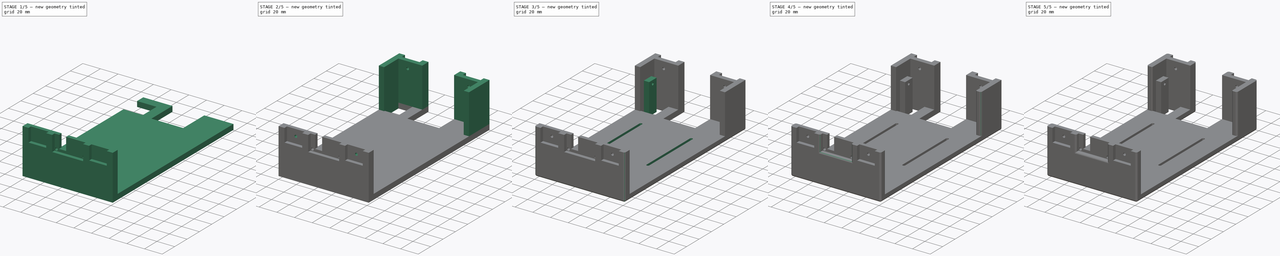
[diagram: build sequence overview — one tinted view per stage of 5, left to right]
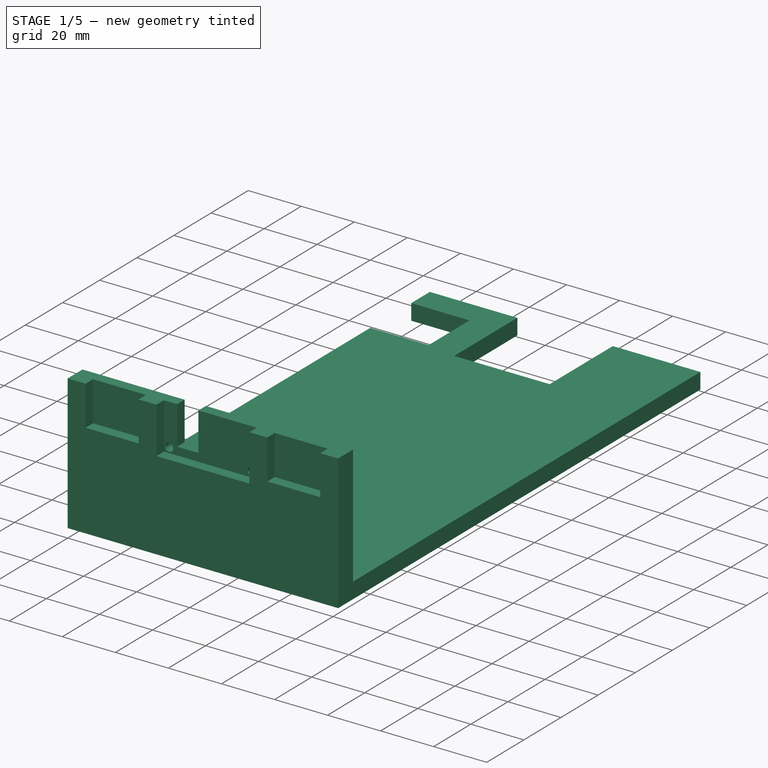
[diagram: stage 1 of 5 — iso view after this stage's code; geometry added in this stage tinted green]
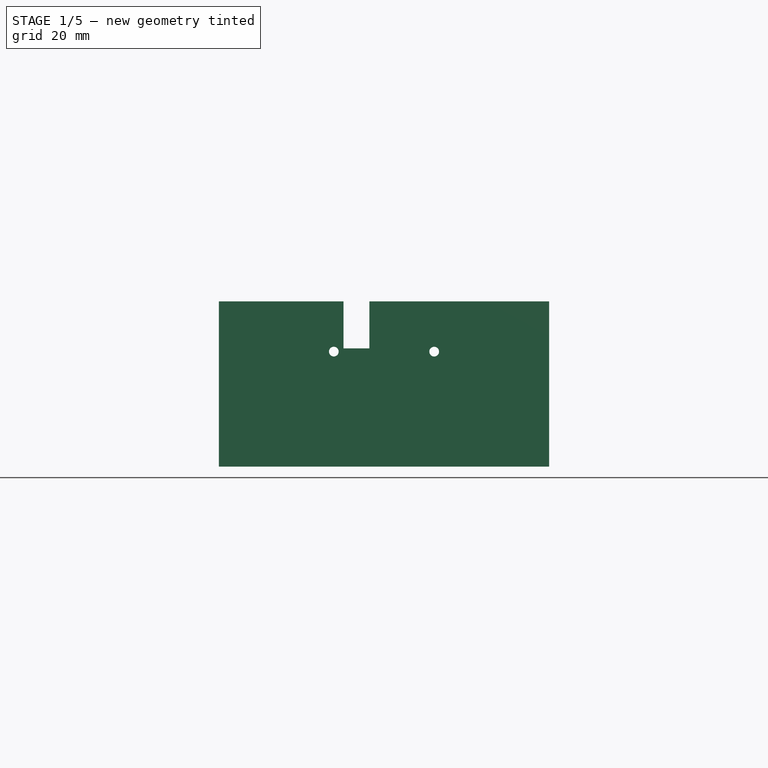
[diagram: stage 1 of 5 — front view after this stage's code; geometry added in this stage tinted green]
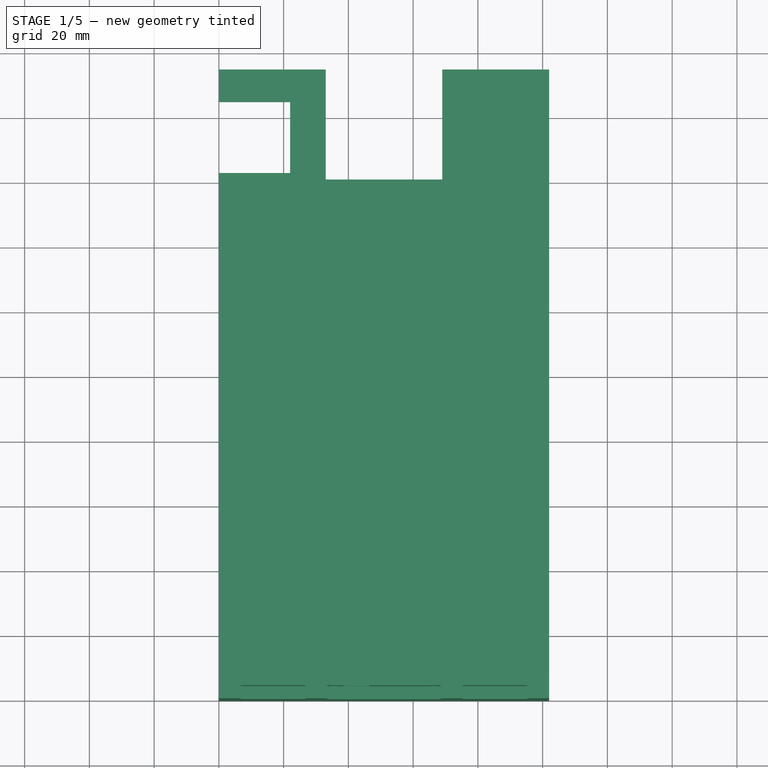
[diagram: stage 1 of 5 — top view after this stage's code; geometry added in this stage tinted green]
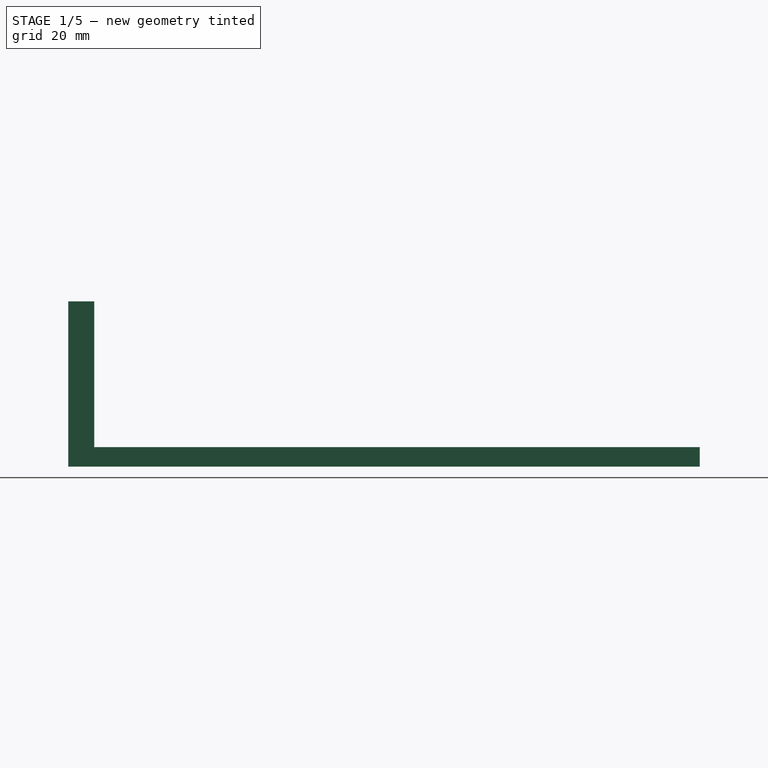
[diagram: stage 1 of 5 — right view after this stage's code; geometry added in this stage tinted green]
FCSTD DOCUMENT  (FreeCAD 0.20R29603 (Git))
Label: PipeScan Bottom
License: All rights reserved
LicenseURL: http://en.wikipedia.org/wiki/All_rights_reserved
objects: Sketcher::SketchObject×14, PartDesign::Fillet×14, PartDesign::Pocket×9, PartDesign::Pad×5, PartDesign::Body×1
note: 71 computed .brp shape members not serialized (recipe doc carries the construction recipe); baked Part::Feature solids carry a one-line shape summary decoded from their .brp

FEATURE [Sketcher::SketchObject] Sketch
  FullyConstrained = true
  MapMode = 5
  Support = -> [XY_Plane]
  sketch-geometry (8):
    g0: LineSegment StartX=0 StartY=0 StartZ=0 EndX=0 EndY=195 EndZ=0
    g1: LineSegment StartX=0 StartY=195 StartZ=0 EndX=33 EndY=195 EndZ=0
    g2: LineSegment StartX=33 StartY=195 StartZ=0 EndX=33 EndY=161 EndZ=0
    g3: LineSegment StartX=33 StartY=161 StartZ=0 EndX=69 EndY=161 EndZ=0
    g4: LineSegment StartX=69 StartY=161 StartZ=0 EndX=69 EndY=195 EndZ=0
    g5: LineSegment StartX=69 StartY=195 StartZ=0 EndX=102 EndY=195 EndZ=0
    g6: LineSegment StartX=102 StartY=195 StartZ=0 EndX=102 EndY=0 EndZ=0
    g7: LineSegment StartX=102 StartY=0 StartZ=0 EndX=0 EndY=0 EndZ=0
  constraints (23):
    c: Vertical(g0)
    c: Coincident(g0,g1)
    c: Coincident(g1,g2)
    c: Vertical(g2)
    c: Coincident(g2,g3)
    c: Horizontal(g3)
    c: Coincident(g3,g4)
    c: Vertical(g4)
    c: Coincident(g4,g5)
    c: Horizontal(g5)
    c: Coincident(g5,g6)
    c: Vertical(g6)
    c: Coincident(g6,g7)
    c: Coincident(g7,g0)
    c: Horizontal(g7)
    c: Equal(g6,g0)
    c: Horizontal(g1)
    c: DistanceY(g6,g6) = 195
    c: DistanceX(g7,g7) = 102
    c: Equal(g5,g1)
    c: DistanceX(g1,g1) = 33
    c: DistanceY(g4,g4) = 34
    c: Coincident(g-1,g0)
FEATURE [PartDesign::Pad] Pad  label="Estrutura"
  Direction = (0,0,1)
  Length = 6
  Length2 = 10
  Profile = -> Sketch
  ReferenceAxis = -> Sketch [N_Axis]
  Type = 0
FEATURE [Sketcher::SketchObject] Sketch001
  ExternalGeometry = -> [Pad]
  FullyConstrained = true
  MapMode = 5
  Placement = pos=(0,0,6) rot=(0,0,1;0rad)
  Support = -> [Pad]
  sketch-geometry (4):
    g0: LineSegment StartX=0 StartY=185 StartZ=0 EndX=22 EndY=185 EndZ=0
    g1: LineSegment StartX=22 StartY=185 StartZ=0 EndX=22 EndY=163 EndZ=0
    g2: LineSegment StartX=22 StartY=163 StartZ=0 EndX=0 EndY=163 EndZ=0
    g3: LineSegment StartX=0 StartY=163 StartZ=0 EndX=0 EndY=185 EndZ=0
  constraints (12):
    c: Coincident(g0,g1)
    c: Coincident(g1,g2)
    c: Coincident(g2,g3)
    c: Coincident(g3,g0)
    c: Horizontal(g0)
    c: Horizontal(g2)
    c: Vertical(g1)
    c: Vertical(g3)
    c: DistanceX(g2,g2) = 22
    c: Equal(g2,g1)
    c: PointOnObject(g0,g-2)
    c: DistanceY(g0,g-3) = 10
FEATURE [PartDesign::Pocket] Pocket  label="Furo Encaixe"
  BaseFeature = -> Pad
  Direction = (0,0,-1)
  Length = 6
  Length2 = 5
  Profile = -> Sketch001
  ReferenceAxis = -> Sketch001 [N_Axis]
  Type = 0
FEATURE [Sketcher::SketchObject] Sketch002
  FullyConstrained = true
  MapMode = 5
  Placement = pos=(0,0,6) rot=(0,0,1;0rad)
  Support = -> [Pocket]
  sketch-geometry (4):
    g0: LineSegment StartX=0 StartY=8 StartZ=0 EndX=102 EndY=8 EndZ=0
    g1: LineSegment StartX=102 StartY=8 StartZ=0 EndX=102 EndY=0 EndZ=0
    g2: LineSegment StartX=102 StartY=0 StartZ=0 EndX=0 EndY=0 EndZ=0
    g3: LineSegment StartX=0 StartY=0 StartZ=0 EndX=0 EndY=8 EndZ=0
  constraints (11):
    c: Coincident(g0,g1)
    c: Coincident(g1,g2)
    c: Coincident(g2,g3)
    c: Coincident(g3,g0)
    c: Horizontal(g0)
    c: Horizontal(g2)
    c: Vertical(g1)
    c: Vertical(g3)
    c: DistanceY(g1,g1) = 8
    c: DistanceX(g2,g2) = 102
    c: Coincident(g2,g-1)
FEATURE [PartDesign::Pad] Pad001  label="Frente"
  BaseFeature = -> Pocket
  Direction = (0,0,1)
  Length = 45
  Length2 = 10
  Profile = -> Sketch002
  ReferenceAxis = -> Sketch002 [N_Axis]
  Type = 0
FEATURE [Sketcher::SketchObject] Sketch003
  ExternalGeometry = -> [Pad001]
  FullyConstrained = true
  MapMode = 5
  Placement = pos=(0,0,0) rot=(1,0,0;1.5708rad)
  Support = -> [Pad001]
  sketch-geometry (4):
    g0: LineSegment StartX=33.5 StartY=51 StartZ=0 EndX=68.5 EndY=51 EndZ=0
    g1: LineSegment StartX=68.5 StartY=51 StartZ=0 EndX=68.5 EndY=33.5 EndZ=0
    g2: LineSegment StartX=68.5 StartY=33.5 StartZ=0 EndX=33.5 EndY=33.5 EndZ=0
    g3: LineSegment StartX=33.5 StartY=33.5 StartZ=0 EndX=33.5 EndY=51 EndZ=0
  constraints (12):
    c: Coincident(g0,g1)
    c: Coincident(g1,g2)
    c: Coincident(g2,g3)
    c: Coincident(g3,g0)
    c: Horizontal(g0)
    c: Horizontal(g2)
    c: Vertical(g1)
    c: Vertical(g3)
    c: DistanceX(g2,g2) = 35
    c: DistanceY(g1,g1) = 17.5
    c: PointOnObject(g0,g-3)
    c: DistanceX(g-3,g0) = 33.5
FEATURE [PartDesign::Pocket] Pocket001  label="Câmera"
  BaseFeature = -> Pad001
  Direction = (0,1,-2e-16)
  Length = 4
  Length2 = 5
  Profile = -> Sketch003
  ReferenceAxis = -> Sketch003 [N_Axis]
  Type = 0
FEATURE [Sketcher::SketchObject] Sketch004
  ExternalGeometry = -> [Pocket001]
  FullyConstrained = true
  MapMode = 5
  Placement = pos=(0,4,-9e-16) rot=(1,0,0;1.5708rad)
  Support = -> [Pocket001]
  sketch-geometry (6):
    g0: LineSegment StartX=38.5 StartY=51 StartZ=0 EndX=46.5 EndY=51 EndZ=0
    g1: LineSegment StartX=46.5 StartY=51 StartZ=0 EndX=46.5 EndY=36.5 EndZ=0
    g2: LineSegment StartX=46.5 StartY=36.5 StartZ=0 EndX=38.5 EndY=36.5 EndZ=0
    g3: LineSegment StartX=38.5 StartY=36.5 StartZ=0 EndX=38.5 EndY=51 EndZ=0
    g4: Circle CenterX=35.5 CenterY=35.5 CenterZ=0 NormalX=0 NormalY=0 NormalZ=1 AngleXU=0 Radius=1.5
    g5: Circle CenterX=66.5 CenterY=35.5 CenterZ=0 NormalX=0 NormalY=0 NormalZ=1 AngleXU=0 Radius=1.5
  constraints (18):
    c: Coincident(g0,g1)
    c: Coincident(g1,g2)
    c: Coincident(g2,g3)
    c: Coincident(g3,g0)
    c: Horizontal(g0)
    c: Horizontal(g2)
    c: Vertical(g1)
    c: Vertical(g3)
    c: DistanceX(g0,g0) = 8
    c: DistanceX(g-3,g2) = 5
    c: DistanceY(g-3,g2) = 3
    c: PointOnObject(g0,g-4)
    c: Equal(g5,g4)
    c: Radius(g4) = 1.5
    c: DistanceX(g-3,g4) = 2
    c: DistanceY(g-3,g4) = 2
    c: DistanceX(g5,g-3) = 2
    c: DistanceY(g-3,g5) = 2
FEATURE [PartDesign::Pocket] Pocket002  label="Furos Câmera"
  BaseFeature = -> Pocket001
  Direction = (0,1,-2e-16)
  Length = 4
  Length2 = 5
  Profile = -> Sketch004
  ReferenceAxis = -> Sketch004 [N_Axis]
  Type = 0
FEATURE [Sketcher::SketchObject] Sketch005
  ExternalGeometry = -> [Pocket002]
  FullyConstrained = true
  MapMode = 5
  Placement = pos=(0,0,51) rot=(0,0,1;0rad)
  Support = -> [Pocket002]
  sketch-geometry (8):
    g0: LineSegment StartX=75.25 StartY=4 StartZ=0 EndX=95.25 EndY=4 EndZ=0
    g1: LineSegment StartX=95.25 StartY=4 StartZ=0 EndX=95.25 EndY=0 EndZ=0
    g2: LineSegment StartX=95.25 StartY=0 StartZ=0 EndX=75.25 EndY=0 EndZ=0
    g3: LineSegment StartX=75.25 StartY=0 StartZ=0 EndX=75.25 EndY=4 EndZ=0
    g4: LineSegment StartX=6.75 StartY=4 StartZ=0 EndX=26.75 EndY=4 EndZ=0
    g5: LineSegment StartX=26.75 StartY=4 StartZ=0 EndX=26.75 EndY=0 EndZ=0
    g6: LineSegment StartX=26.75 StartY=0 StartZ=0 EndX=6.75 EndY=0 EndZ=0
    g7: LineSegment StartX=6.75 StartY=0 StartZ=0 EndX=6.75 EndY=4 EndZ=0
  constraints (24):
    c: Coincident(g0,g1)
    c: Coincident(g1,g2)
    c: Coincident(g2,g3)
    c: Coincident(g3,g0)
    c: Horizontal(g0)
    c: Horizontal(g2)
    c: Vertical(g1)
    c: Vertical(g3)
    c: DistanceY(g1,g1) = 4
    c: DistanceX(g0,g0) = 20
    c: PointOnObject(g2,g-1)
    c: DistanceX(g-3,g2) = 6.75
    c: Coincident(g4,g5)
    c: Coincident(g5,g6)
    c: Coincident(g6,g7)
    c: Coincident(g7,g4)
    c: Horizontal(g4)
    c: Horizontal(g6)
    c: Vertical(g5)
    c: Vertical(g7)
    c: Equal(g5,g1)
    c: Equal(g0,g4)
    c: PointOnObject(g6,g-1)
    c: DistanceX(g-1,g6) = 6.75
FEATURE [PartDesign::Pocket] Pocket003  label="Encaixes Frontal"
  BaseFeature = -> Pocket002
  Direction = (0,0,-1)
  Length = 15
  Length2 = 5
  Profile = -> Sketch005
  ReferenceAxis = -> Sketch005 [N_Axis]
  Type = 0
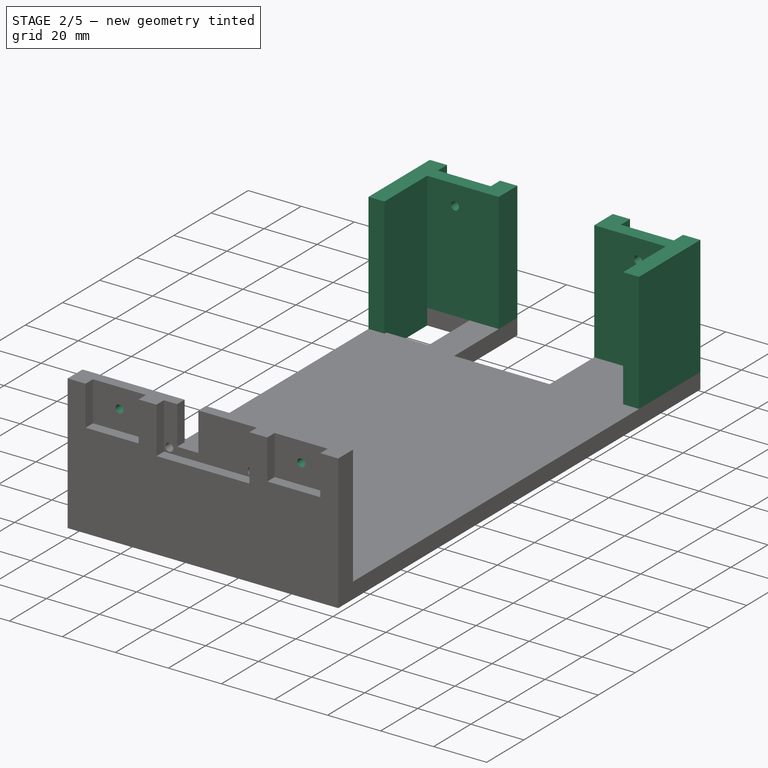
[diagram: stage 2 of 5 — iso view after this stage's code; geometry added in this stage tinted green]
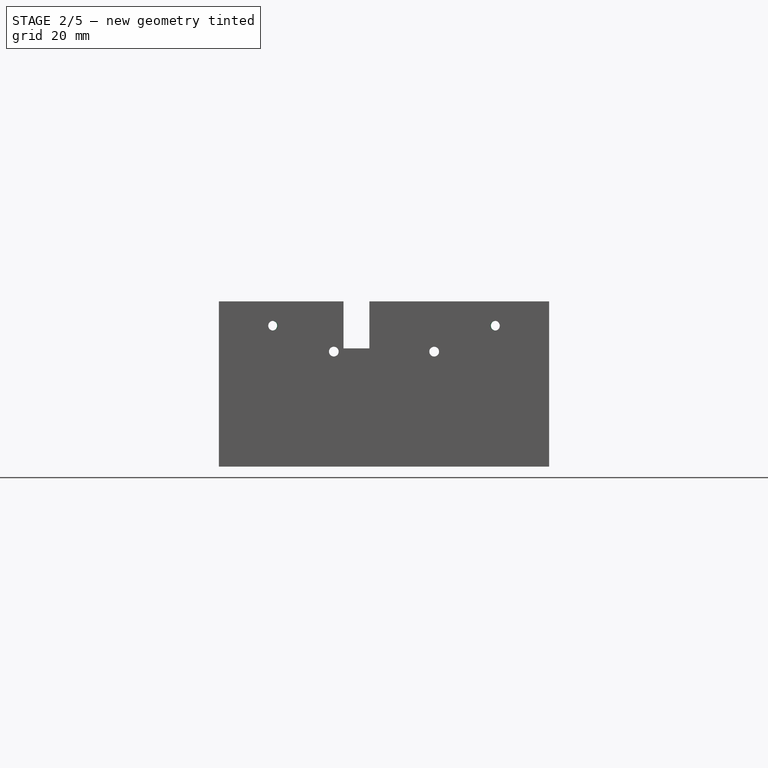
[diagram: stage 2 of 5 — front view after this stage's code; geometry added in this stage tinted green]
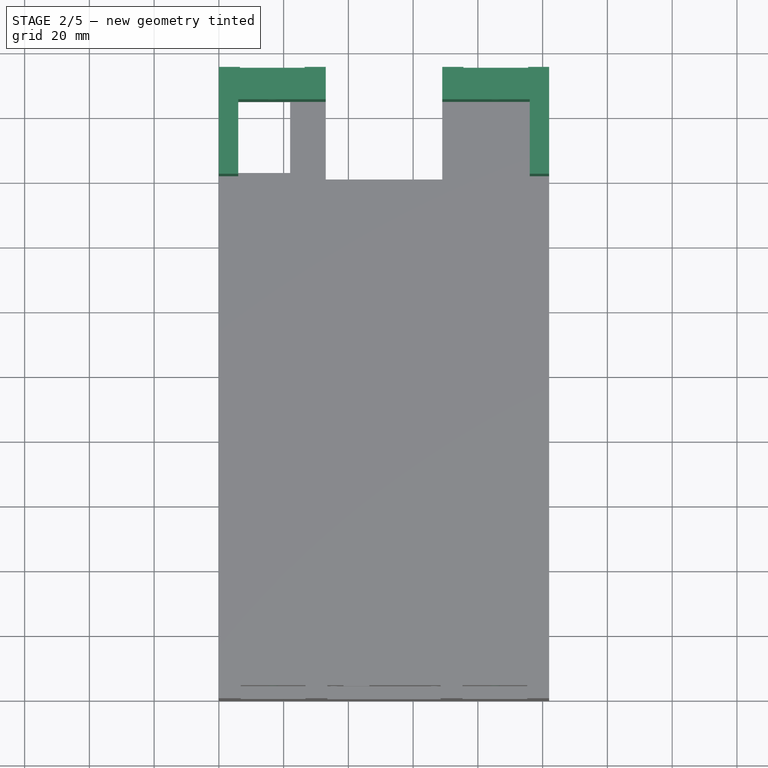
[diagram: stage 2 of 5 — top view after this stage's code; geometry added in this stage tinted green]
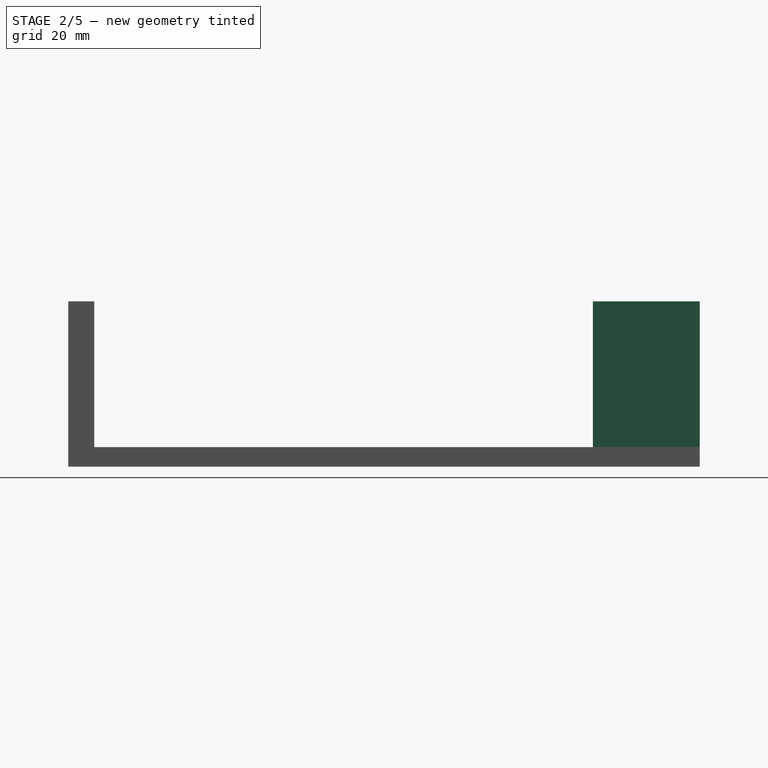
[diagram: stage 2 of 5 — right view after this stage's code; geometry added in this stage tinted green]
FEATURE [Sketcher::SketchObject] Sketch006
  ExternalGeometry = -> [Pocket003]
  FullyConstrained = true
  MapMode = 5
  Placement = pos=(0,4,0) rot=(1,0,0;1.5708rad)
  Support = -> [Pocket003]
  sketch-geometry (2):
    g0: Circle CenterX=16.75 CenterY=43.5 CenterZ=0 NormalX=0 NormalY=0 NormalZ=1 AngleXU=0 Radius=1.5
    g1: Circle CenterX=85.25 CenterY=43.5 CenterZ=0 NormalX=0 NormalY=0 NormalZ=1 AngleXU=0 Radius=1.5
  constraints (6):
    c: Equal(g0,g1)
    c: Radius(g0) = 1.5
    c: DistanceX(g-3,g0) = 10
    c: DistanceY(g0,g-3) = 7.5
    c: DistanceX(g-4,g1) = 10
    c: DistanceY(g1,g-4) = 7.5
FEATURE [PartDesign::Pocket] Pocket004  label="Parafusos Encaixe Frontal"
  BaseFeature = -> Pocket003
  Direction = (0,1,-2e-16)
  Length = 4
  Length2 = 5
  Profile = -> Sketch006
  ReferenceAxis = -> Sketch006 [N_Axis]
  Type = 0
FEATURE [Sketcher::SketchObject] Sketch007
  ExternalGeometry = -> [Pocket004]
  FullyConstrained = true
  MapMode = 5
  Placement = pos=(0,0,6) rot=(0,0,1;0rad)
  Support = -> [Pocket004]
  sketch-geometry (12):
    g0: LineSegment StartX=102 StartY=162 StartZ=0 EndX=96 EndY=162 EndZ=0
    g1: LineSegment StartX=96 StartY=162 StartZ=0 EndX=96 EndY=185 EndZ=0
    g2: LineSegment StartX=96 StartY=185 StartZ=0 EndX=69 EndY=185 EndZ=0
    g3: LineSegment StartX=69 StartY=185 StartZ=0 EndX=69 EndY=195 EndZ=0
    g4: LineSegment StartX=69 StartY=195 StartZ=0 EndX=102 EndY=195 EndZ=0
    g5: LineSegment StartX=102 StartY=195 StartZ=0 EndX=102 EndY=162 EndZ=0
    g6: LineSegment StartX=6 StartY=162 StartZ=0 EndX=0 EndY=162 EndZ=0
    g7: LineSegment StartX=0 StartY=162 StartZ=0 EndX=0 EndY=195 EndZ=0
    g8: LineSegment StartX=0 StartY=195 StartZ=0 EndX=33 EndY=195 EndZ=0
    g9: LineSegment StartX=33 StartY=195 StartZ=0 EndX=33 EndY=185 EndZ=0
    g10: LineSegment StartX=33 StartY=185 StartZ=0 EndX=6 EndY=185 EndZ=0
    g11: LineSegment StartX=6 StartY=185 StartZ=0 EndX=6 EndY=162 EndZ=0
  constraints (32):
    c: Horizontal(g0)
    c: Coincident(g0,g1)
    c: Vertical(g1)
    c: Coincident(g1,g2)
    c: Horizontal(g2)
    c: Coincident(g2,g3)
    c: Vertical(g3)
    c: Coincident(g3,g4)
    c: Coincident(g4,g5)
    c: Coincident(g5,g0)
    c: Vertical(g5)
    c: Horizontal(g6)
    c: Coincident(g6,g7)
    c: Vertical(g7)
    c: Coincident(g7,g8)
    c: Coincident(g8,g9)
    c: Vertical(g9)
    c: Coincident(g9,g10)
    c: Horizontal(g10)
    c: Coincident(g10,g11)
    c: Coincident(g11,g6)
    c: Vertical(g11)
    c: DistanceX(g6,g6) = 6
    c: Coincident(g7,g-3)
    c: Coincident(g8,g-3)
    c: PointOnObject(g10,g-4)
    c: DistanceY(g7,g7) = 33
    c: Coincident(g4,g-5)
    c: Coincident(g3,g-5)
    c: Equal(g3,g9)
    c: Equal(g7,g5)
    c: Equal(g0,g6)
FEATURE [PartDesign::Pad] Pad002  label="Atrás"
  BaseFeature = -> Pocket004
  Direction = (0,0,1)
  Length = 45
  Length2 = 10
  Profile = -> Sketch007
  ReferenceAxis = -> Sketch007 [N_Axis]
  Type = 0
FEATURE [Sketcher::SketchObject] Sketch008
  ExternalGeometry = -> [Pad002]
  FullyConstrained = true
  MapMode = 5
  Placement = pos=(0,185,0) rot=(1,0,0;1.5708rad)
  Support = -> [Pad002]
  sketch-geometry (4):
    g0: LineSegment StartX=6 StartY=0 StartZ=0 EndX=0 EndY=0 EndZ=0
    g1: LineSegment StartX=0 StartY=0 StartZ=0 EndX=0 EndY=6 EndZ=0
    g2: LineSegment StartX=0 StartY=6 StartZ=0 EndX=6 EndY=6 EndZ=0
    g3: LineSegment StartX=6 StartY=6 StartZ=0 EndX=6 EndY=0 EndZ=0
  constraints (9):
    c: Coincident(g0,g1)
    c: Coincident(g1,g2)
    c: Coincident(g2,g3)
    c: Coincident(g3,g0)
    c: Horizontal(g0)
    c: Vertical(g3)
    c: Coincident(g0,g-1)
    c: Coincident(g-3,g1)
    c: Coincident(g-3,g2)
FEATURE [PartDesign::Pad] Pad003  label="Detalhe"
  BaseFeature = -> Pad002
  Direction = (0,-1,2e-16)
  Length = 22
  Length2 = 10
  Profile = -> Sketch008
  ReferenceAxis = -> Sketch008 [N_Axis]
  Type = 0
FEATURE [Sketcher::SketchObject] Sketch009
  ExternalGeometry = -> [Pad003]
  FullyConstrained = true
  MapMode = 5
  Placement = pos=(0,0,51) rot=(0,0,1;0rad)
  Support = -> [Pad003]
  sketch-geometry (8):
    g0: LineSegment StartX=6.5 StartY=195 StartZ=0 EndX=26.5 EndY=195 EndZ=0
    g1: LineSegment StartX=26.5 StartY=195 StartZ=0 EndX=26.5 EndY=190 EndZ=0
    g2: LineSegment StartX=26.5 StartY=190 StartZ=0 EndX=6.5 EndY=190 EndZ=0
    g3: LineSegment StartX=6.5 StartY=190 StartZ=0 EndX=6.5 EndY=195 EndZ=0
    g4: LineSegment StartX=75.5 StartY=195 StartZ=0 EndX=95.5 EndY=195 EndZ=0
    g5: LineSegment StartX=95.5 StartY=195 StartZ=0 EndX=95.5 EndY=190 EndZ=0
    g6: LineSegment StartX=95.5 StartY=190 StartZ=0 EndX=75.5 EndY=190 EndZ=0
    g7: LineSegment StartX=75.5 StartY=190 StartZ=0 EndX=75.5 EndY=195 EndZ=0
  constraints (24):
    c: Coincident(g0,g1)
    c: Coincident(g1,g2)
    c: Coincident(g2,g3)
    c: Coincident(g3,g0)
    c: Horizontal(g0)
    c: Horizontal(g2)
    c: Vertical(g1)
    c: Vertical(g3)
    c: Coincident(g4,g5)
    c: Coincident(g5,g6)
    c: Coincident(g6,g7)
    c: Coincident(g7,g4)
    c: Horizontal(g4)
    c: Horizontal(g6)
    c: Vertical(g5)
    c: Vertical(g7)
    c: DistanceY(g1,g1) = 5
    c: DistanceX(g2,g2) = 20
    c: PointOnObject(g0,g-3)
    c: DistanceX(g-3,g0) = 6.5
    c: Equal(g7,g1)
    c: Equal(g2,g6)
    c: PointOnObject(g4,g-4)
    c: DistanceX(g-4,g4) = 6.5
FEATURE [PartDesign::Pocket] Pocket005  label="Encaixes Traseiro"
  BaseFeature = -> Pad003
  Direction = (0,0,-1)
  Length = 15
  Length2 = 5
  Profile = -> Sketch009
  ReferenceAxis = -> Sketch009 [N_Axis]
  Type = 0
FEATURE [Sketcher::SketchObject] Sketch010
  ExternalGeometry = -> [Pocket005]
  FullyConstrained = true
  MapMode = 5
  Placement = pos=(0,190,0) rot=(0,0.707107,0.707107;3.14159rad)
  Support = -> [Pocket005]
  sketch-geometry (2):
    g0: Circle CenterX=-85.5 CenterY=43.5 CenterZ=0 NormalX=0 NormalY=0 NormalZ=1 AngleXU=0 Radius=1.5
    g1: Circle CenterX=-16.5 CenterY=43.5 CenterZ=0 NormalX=0 NormalY=0 NormalZ=1 AngleXU=0 Radius=1.5
  constraints (6):
    c: Equal(g1,g0)
    c: Radius(g0) = 1.5
    c: DistanceX(g-3,g0) = 10
    c: DistanceY(g0,g-3) = 7.5
    c: DistanceX(g-4,g1) = 10
    c: DistanceY(g1,g-4) = 7.5
FEATURE [PartDesign::Pocket] Pocket006  label="Parafuso Traseiro"
  BaseFeature = -> Pocket005
  Direction = (0,-1,2e-16)
  Length = 5
  Length2 = 5
  Profile = -> Sketch010
  ReferenceAxis = -> Sketch010 [N_Axis]
  Type = 0
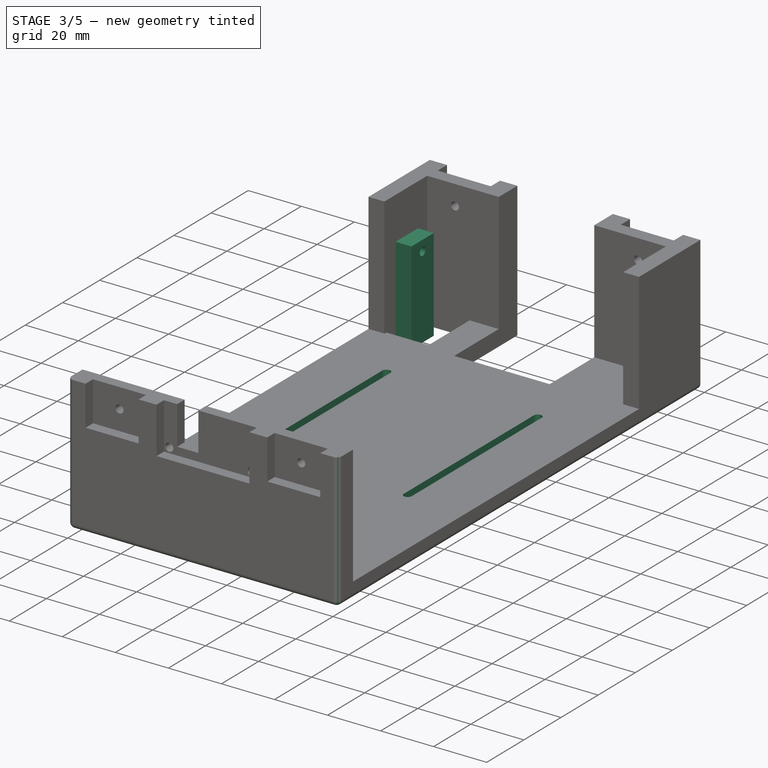
[diagram: stage 3 of 5 — iso view after this stage's code; geometry added in this stage tinted green]
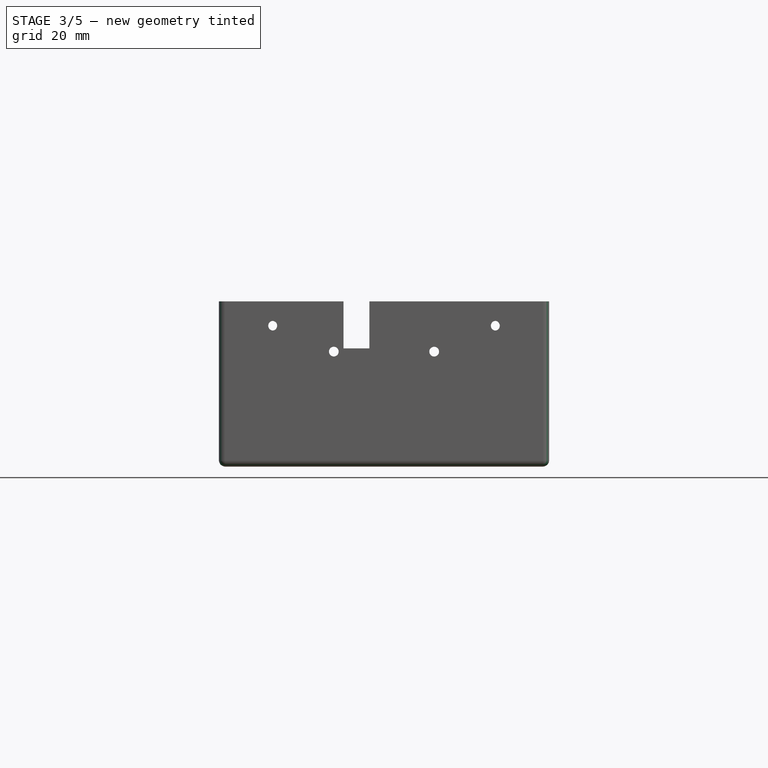
[diagram: stage 3 of 5 — front view after this stage's code; geometry added in this stage tinted green]
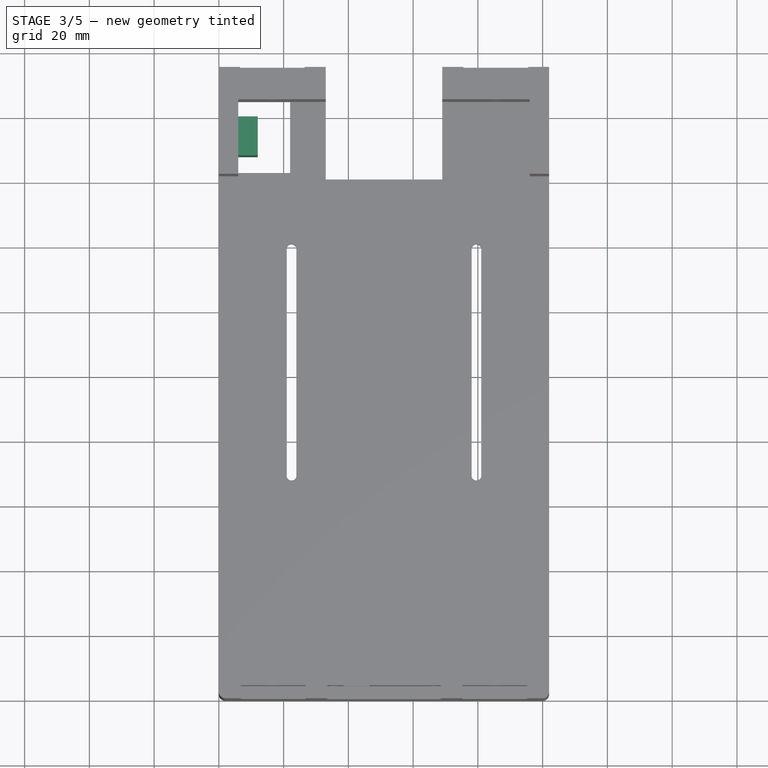
[diagram: stage 3 of 5 — top view after this stage's code; geometry added in this stage tinted green]
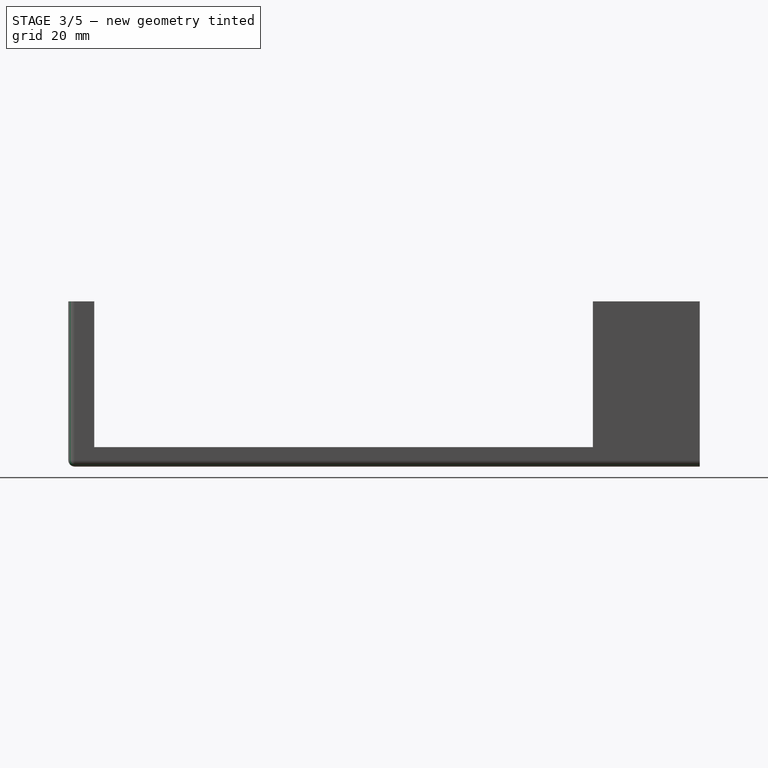
[diagram: stage 3 of 5 — right view after this stage's code; geometry added in this stage tinted green]
FEATURE [Sketcher::SketchObject] Sketch011
  ExternalGeometry = -> [Pocket006]
  FullyConstrained = true
  MapMode = 5
  Placement = pos=(6,0,0) rot=(0.57735,0.57735,0.57735;2.0944rad)
  Support = -> [Pocket006]
  sketch-geometry (4):
    g0: LineSegment StartX=168 StartY=35 StartZ=0 EndX=180 EndY=35 EndZ=0
    g1: LineSegment StartX=180 StartY=35 StartZ=0 EndX=180 EndY=0 EndZ=0
    g2: LineSegment StartX=180 StartY=0 StartZ=0 EndX=168 EndY=0 EndZ=0
    g3: LineSegment StartX=168 StartY=0 StartZ=0 EndX=168 EndY=35 EndZ=0
  constraints (12):
    c: Coincident(g0,g1)
    c: Coincident(g1,g2)
    c: Coincident(g2,g3)
    c: Coincident(g3,g0)
    c: Horizontal(g0)
    c: Horizontal(g2)
    c: Vertical(g1)
    c: Vertical(g3)
    c: DistanceY(g1,g1) = 35
    c: DistanceX(g0,g0) = 12
    c: PointOnObject(g1,g-1)
    c: DistanceX(g-3,g2) = 5
FEATURE [PartDesign::Pad] Pad004  label="Apoio Base Roda"
  BaseFeature = -> Pocket006
  Direction = (1,0,0)
  Length = 6
  Length2 = 10
  Profile = -> Sketch011
  ReferenceAxis = -> Sketch011 [N_Axis]
  Type = 0
FEATURE [Sketcher::SketchObject] Sketch012
  ExternalGeometry = -> [Pad004]
  FullyConstrained = true
  MapMode = 5
  Placement = pos=(12,0,0) rot=(0.57735,0.57735,0.57735;2.0944rad)
  Support = -> [Pad004]
  sketch-geometry (1):
    g0: Circle CenterX=174 CenterY=31 CenterZ=0 NormalX=0 NormalY=0 NormalZ=1 AngleXU=0 Radius=1.5
  constraints (3):
    c: Radius(g0) = 1.5
    c: DistanceY(g-3,g0) = 31
    c: DistanceX(g0,g-3) = 6
FEATURE [PartDesign::Pocket] Pocket007  label="Parafuso Base Vertical"
  BaseFeature = -> Pad004
  Direction = (-1,0,0)
  Length = 5
  Length2 = 5
  Profile = -> Sketch012
  ReferenceAxis = -> Sketch012 [N_Axis]
  Type = 1
FEATURE [Sketcher::SketchObject] Sketch013
  ExternalGeometry = -> [Pocket007]
  FullyConstrained = true
  MapMode = 5
  Placement = pos=(0,0,0) rot=(1,0,0;3.14159rad)
  Support = -> [Pocket007]
  sketch-geometry (8):
    g0: ArcOfCircle CenterX=22.45 CenterY=-69.55 CenterZ=0 NormalX=0 NormalY=0 NormalZ=1 AngleXU=0 Radius=1.5 StartAngle=2.47e-14 EndAngle=3.14159
    g1: ArcOfCircle CenterX=22.45 CenterY=-139.55 CenterZ=0 NormalX=0 NormalY=0 NormalZ=1 AngleXU=0 Radius=1.5 StartAngle=3.14159 EndAngle=6.28319
    g2: LineSegment StartX=20.95 StartY=-69.55 StartZ=0 EndX=20.95 EndY=-139.55 EndZ=0
    g3: LineSegment StartX=23.95 StartY=-139.55 StartZ=0 EndX=23.95 EndY=-69.55 EndZ=0
    g4: ArcOfCircle CenterX=79.55 CenterY=-69.55 CenterZ=0 NormalX=0 NormalY=0 NormalZ=1 AngleXU=0 Radius=1.5 StartAngle=-3.6e-15 EndAngle=3.14159
    g5: ArcOfCircle CenterX=79.55 CenterY=-139.55 CenterZ=0 NormalX=0 NormalY=0 NormalZ=1 AngleXU=0 Radius=1.5 StartAngle=3.14159 EndAngle=6.28319
    g6: LineSegment StartX=78.05 StartY=-69.55 StartZ=0 EndX=78.05 EndY=-139.55 EndZ=0
    g7: LineSegment StartX=81.05 StartY=-139.55 StartZ=0 EndX=81.05 EndY=-69.55 EndZ=0
  constraints (20):
    c: Tangent(g0,g2) = -1.5708
    c: Tangent(g2,g1) = -1.5708
    c: Tangent(g1,g3) = -1.5708
    c: Tangent(g3,g0) = -1.5708
    c: Equal(g0,g1)
    c: Vertical(g2)
    c: Tangent(g4,g6) = -1.5708
    c: Tangent(g6,g5) = -1.5708
    c: Tangent(g5,g7) = -1.5708
    c: Tangent(g7,g4) = -1.5708
    c: Equal(g4,g5)
    c: Vertical(g6)
    c: DistanceX(g0,g0) = 3
    c: DistanceY(g3,g3) = 70
    c: Equal(g6,g3)
    c: DistanceX(g4,g4) = 3
    c: DistanceX(g-1,g0) = 22.45
    c: DistanceX(g4,g-3) = 22.45
    c: DistanceY(g-3,g5) = 55.45
    c: DistanceY(g-3,g1) = 55.45
FEATURE [PartDesign::Pocket] Pocket008  label="Parafusos Driver"
  BaseFeature = -> Pocket007
  Direction = (0,0,1)
  Length = 6
  Length2 = 5
  Profile = -> Sketch013
  ReferenceAxis = -> Sketch013 [N_Axis]
  Type = 0
FEATURE [PartDesign::Fillet] Fillet
  Base = -> Pocket008 [Edge1]
  BaseFeature = -> Pocket008
  Radius = 2
  SupportTransform = false
  UseAllEdges = false
FEATURE [PartDesign::Fillet] Fillet001
  Base = -> Fillet [Edge49]
  BaseFeature = -> Fillet
  Radius = 2
  SupportTransform = false
  UseAllEdges = false
FEATURE [PartDesign::Fillet] Fillet002
  Base = -> Fillet001 [Edge1]
  BaseFeature = -> Fillet001
  Radius = 2
  SupportTransform = false
  UseAllEdges = false
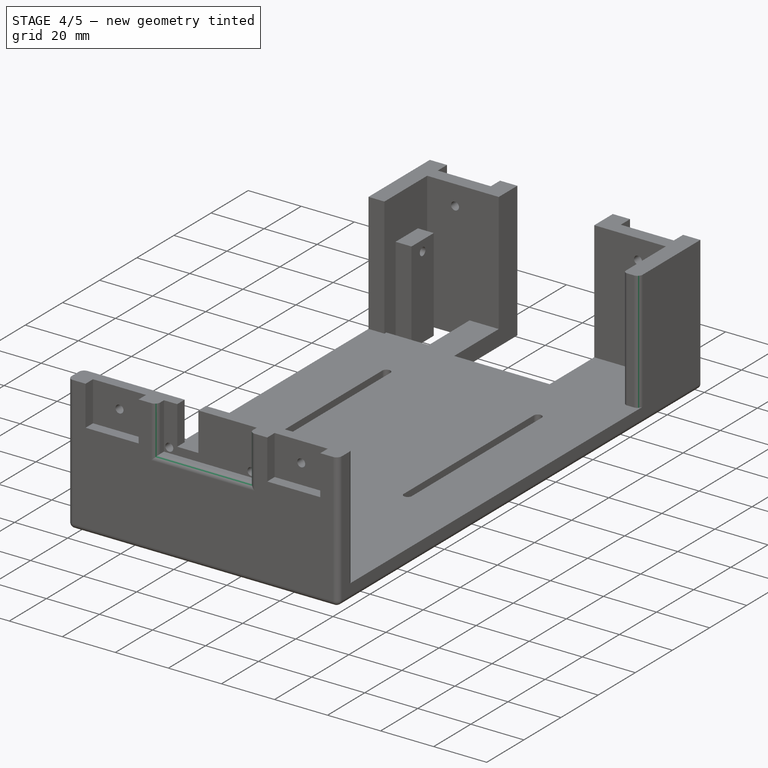
[diagram: stage 4 of 5 — iso view after this stage's code; geometry added in this stage tinted green]
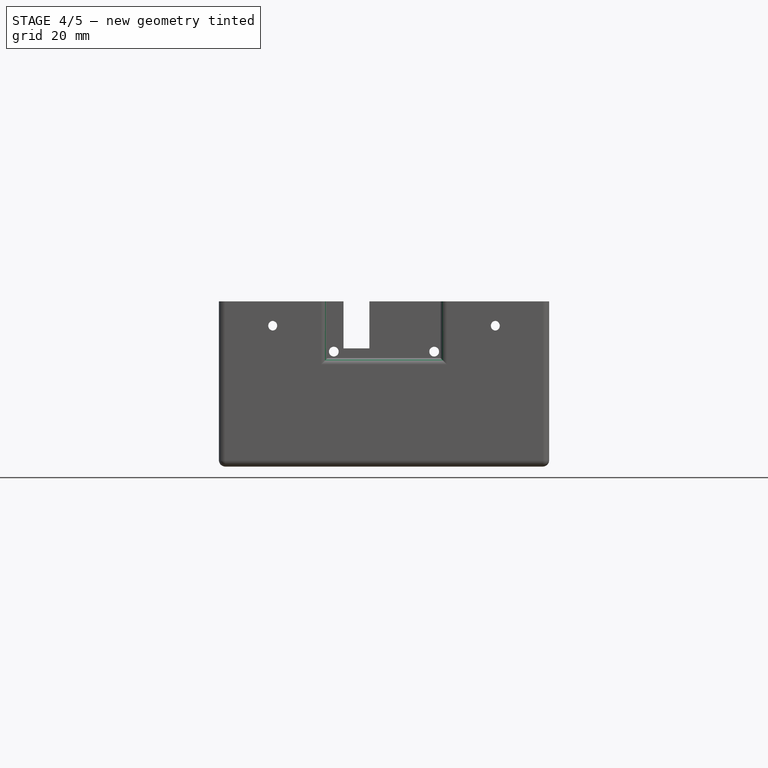
[diagram: stage 4 of 5 — front view after this stage's code; geometry added in this stage tinted green]
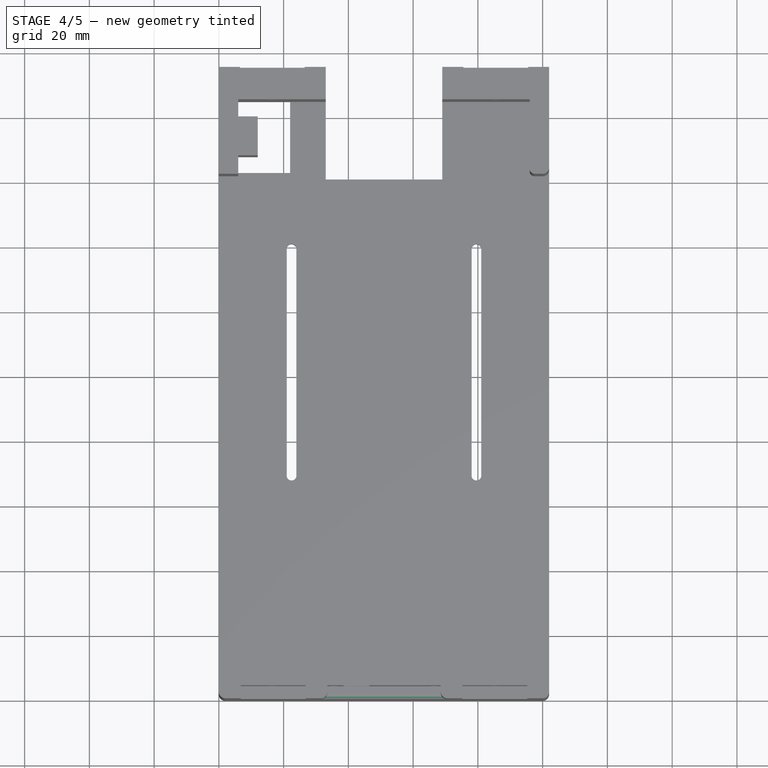
[diagram: stage 4 of 5 — top view after this stage's code; geometry added in this stage tinted green]
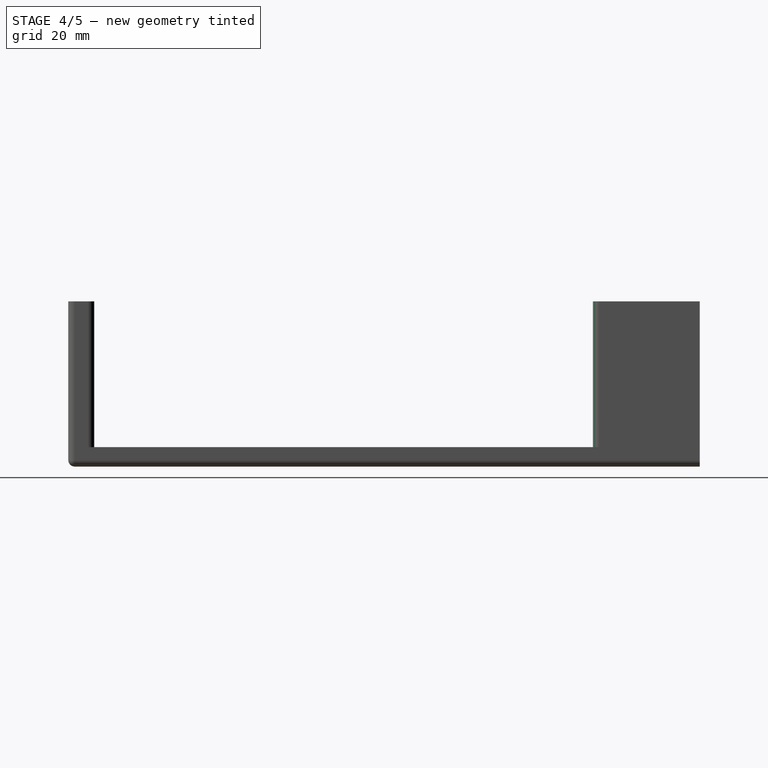
[diagram: stage 4 of 5 — right view after this stage's code; geometry added in this stage tinted green]
FEATURE [PartDesign::Fillet] Fillet003
  Base = -> Fillet002 [Edge19,Edge18,Edge17]
  BaseFeature = -> Fillet002
  Radius = 2
  SupportTransform = false
  UseAllEdges = false
FEATURE [PartDesign::Fillet] Fillet004
  Base = -> Fillet003 [Edge72]
  BaseFeature = -> Fillet003
  Radius = 2
  SupportTransform = false
  UseAllEdges = false
FEATURE [PartDesign::Fillet] Fillet005
  Base = -> Fillet004 [Edge15]
  BaseFeature = -> Fillet004
  Radius = 2
  SupportTransform = false
  UseAllEdges = false
FEATURE [PartDesign::Fillet] Fillet006
  Base = -> Fillet005 [Edge91]
  BaseFeature = -> Fillet005
  Radius = 2
  SupportTransform = false
  UseAllEdges = false
FEATURE [PartDesign::Fillet] Fillet007
  Base = -> Fillet006 [Edge30]
  BaseFeature = -> Fillet006
  Radius = 1.5
  SupportTransform = false
  UseAllEdges = false
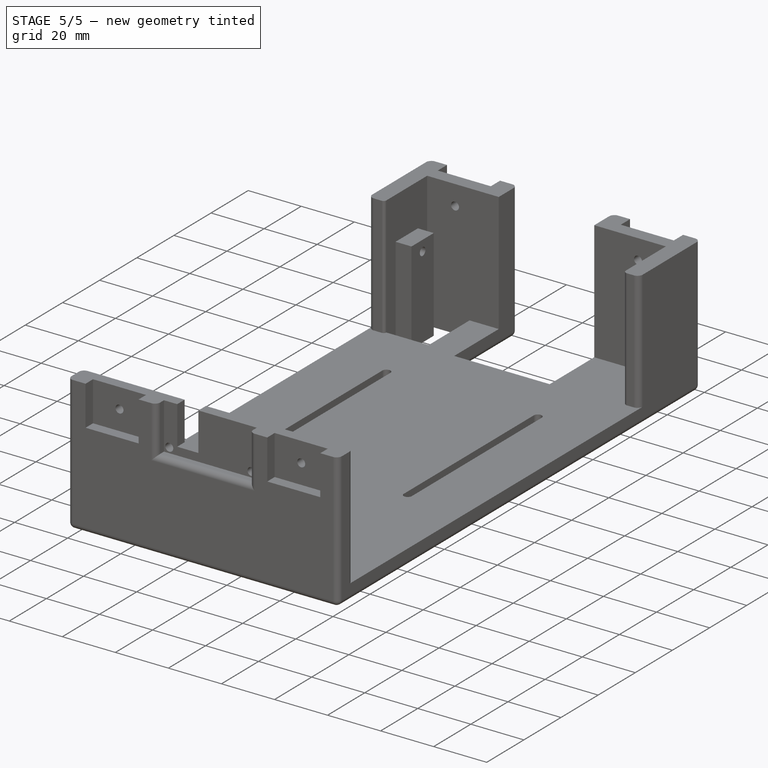
[diagram: stage 5 of 5 — iso view after this stage's code; geometry added in this stage tinted green]
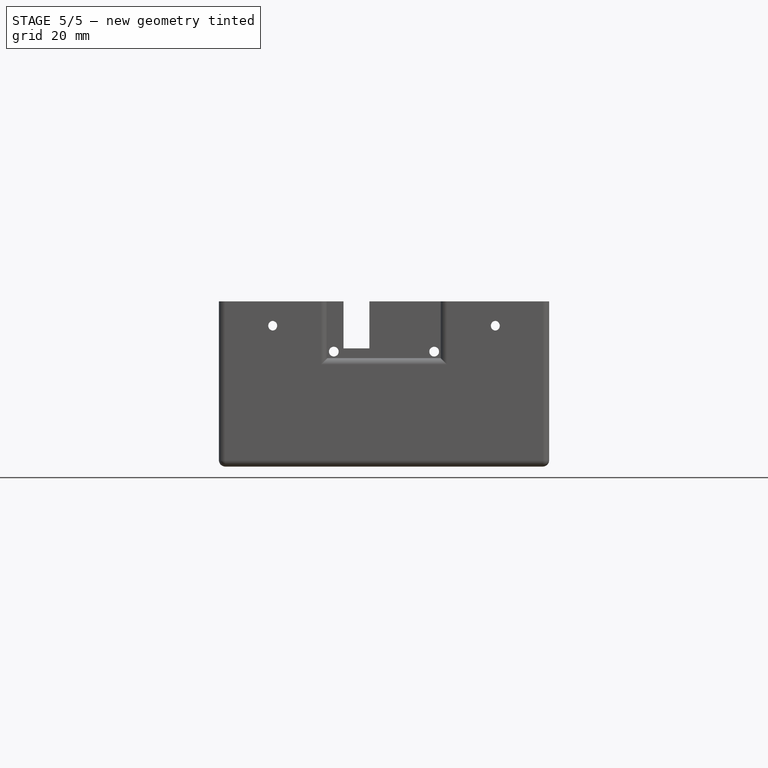
[diagram: stage 5 of 5 — front view after this stage's code; geometry added in this stage tinted green]
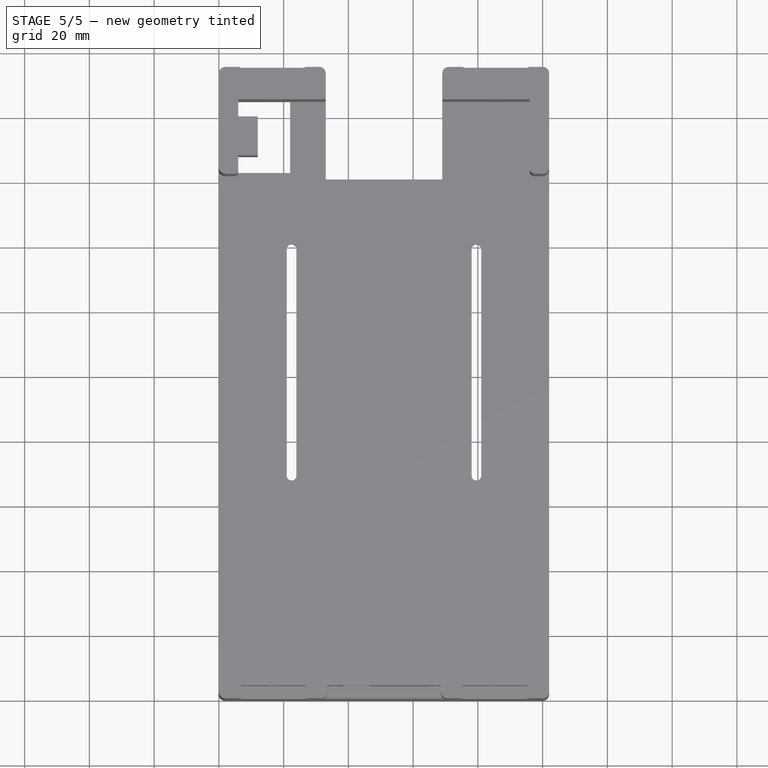
[diagram: stage 5 of 5 — top view after this stage's code; geometry added in this stage tinted green]
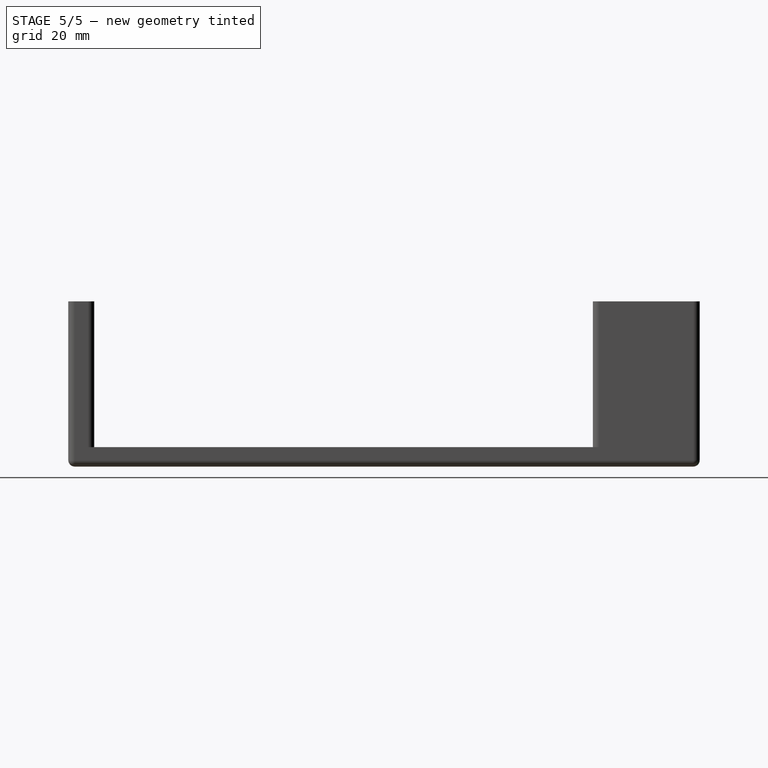
[diagram: stage 5 of 5 — right view after this stage's code; geometry added in this stage tinted green]
FEATURE [PartDesign::Fillet] Fillet008
  Base = -> Fillet007 [Edge94]
  BaseFeature = -> Fillet007
  Radius = 2
  SupportTransform = false
  UseAllEdges = false
FEATURE [PartDesign::Fillet] Fillet009
  Base = -> Fillet008 [Edge35]
  BaseFeature = -> Fillet008
  Radius = 1
  SupportTransform = false
  UseAllEdges = false
FEATURE [PartDesign::Fillet] Fillet010
  Base = -> Fillet009 [Edge127]
  BaseFeature = -> Fillet009
  Radius = 2
  SupportTransform = false
  UseAllEdges = false
FEATURE [PartDesign::Fillet] Fillet011
  Base = -> Fillet010 [Edge184]
  BaseFeature = -> Fillet010
  Radius = 2
  SupportTransform = false
  UseAllEdges = false
FEATURE [PartDesign::Fillet] Fillet012
  Base = -> Fillet011 [Edge111,Edge81]
  BaseFeature = -> Fillet011
  Radius = 2
  SupportTransform = false
  UseAllEdges = false
FEATURE [PartDesign::Fillet] Fillet013
  Base = -> Fillet012 [Edge6]
  BaseFeature = -> Fillet012
  Radius = 2
  SupportTransform = false
  UseAllEdges = false
FEATURE [PartDesign::Body] Body
  Group = -> [Sketch,Pad,Sketch001,Pocket,Sketch002,Pad001,Sketch003,Pocket001,Sketch004,Pocket002,Sketch005,Pocket003,Sketch006,Pocket004,Sketch007,Pad002,Sketch008,Pad003,Sketch009,Pocket005,Sketch010,Pocket006,Sketch011,Pad004,Sketch012,Pocket007,Sketch013,Pocket008,Fillet,Fillet001,Fillet002,Fillet003,Fillet004,Fillet005,Fillet006,Fillet007,Fillet008,Fillet009,Fillet010,Fillet011,Fillet012,Fillet013]
  Origin = -> Origin
  Tip = -> Fillet013
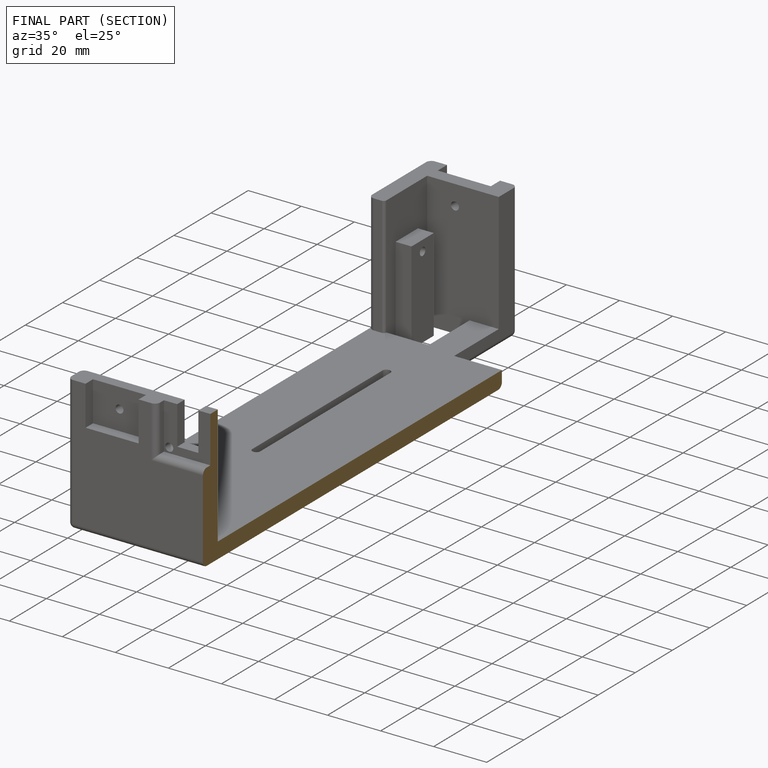
[diagram: finished part — half-section view (interior)]
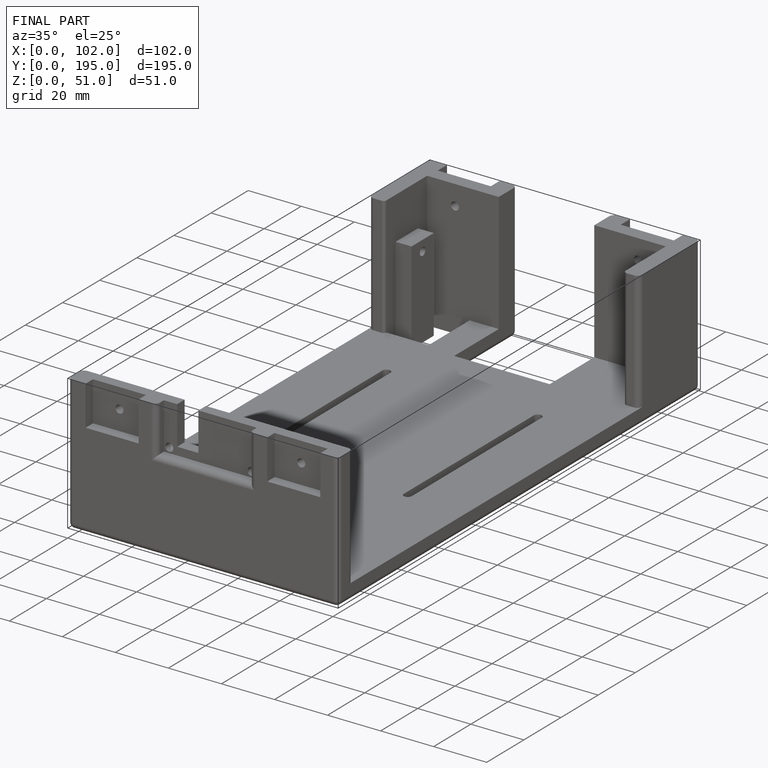
[diagram: finished part — iso view with bounding-box wireframe]
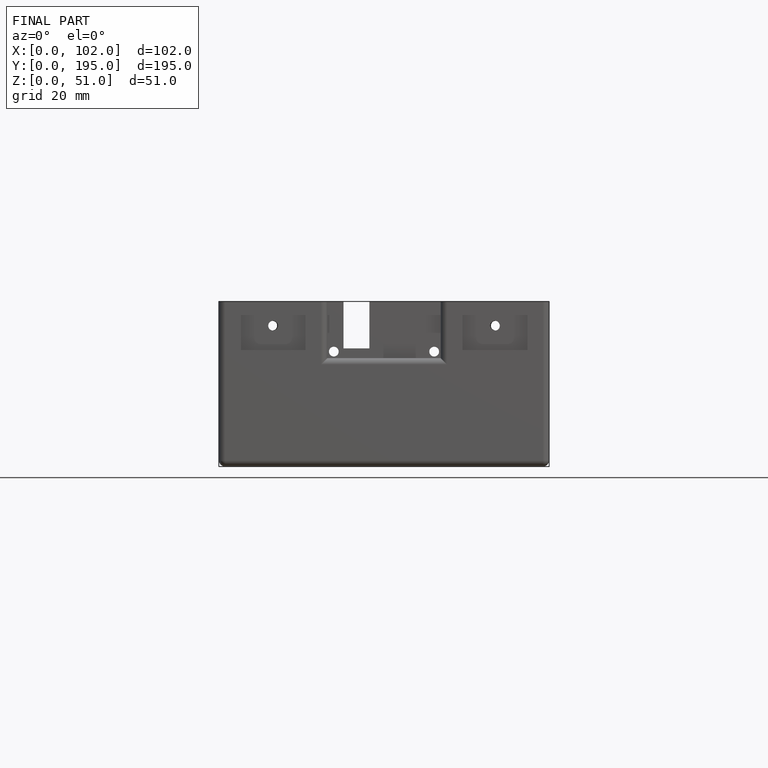
[diagram: finished part — front view with bounding-box wireframe]
